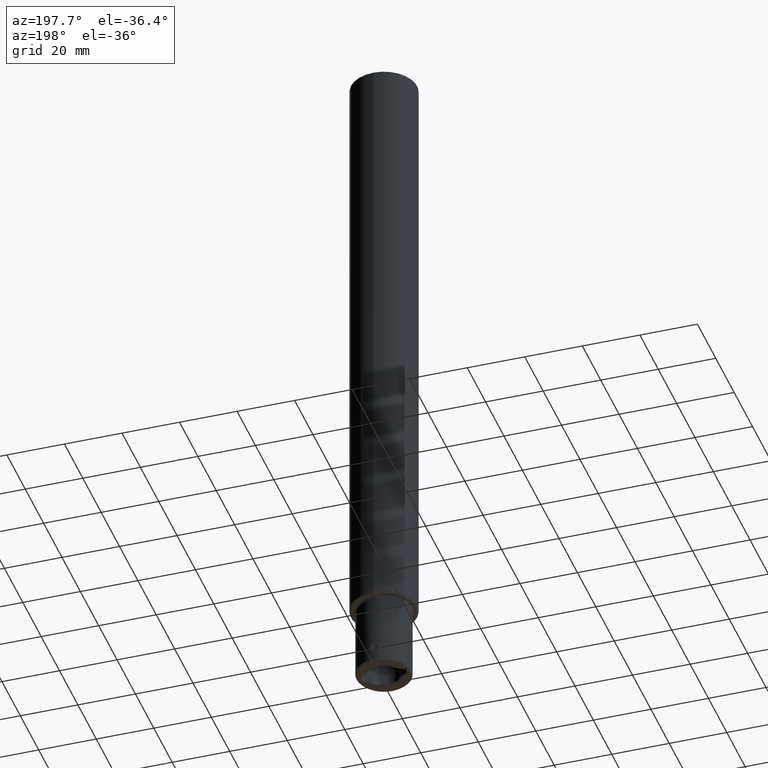
[diagram: clean part render]
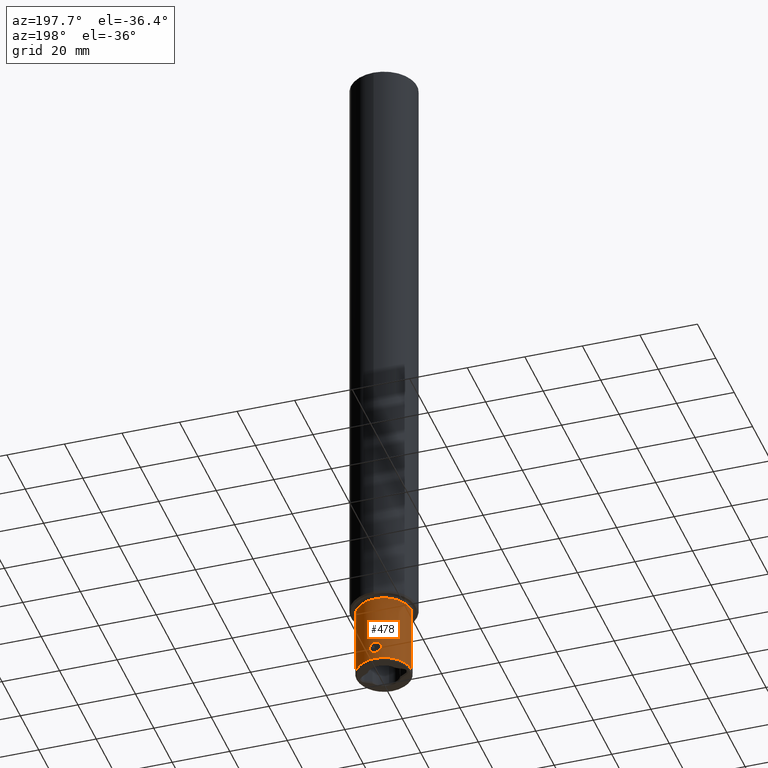
[diagram: same view with one face highlighted and labeled with its STEP entity id]
A machine part, auxiliary view. The second image highlights one B-rep face of the part: STEP entity #478.
In plain terms, the highlighted cylindrical surface (edge-blend (fillet) strip) has radius 9.5 mm, axis along (-0, -0, -1).
Its self-contained STEP definition (entity closure, byte-faithful):
#380=EDGE_CURVE('NONE',#470,#674,#1085,.F.);
#420=EDGE_CURVE('NONE',#752,#576,#1130,.F.);
#434=EDGE_CURVE('NONE',#444,#882,#1144,.F.);
#444=VERTEX_POINT('NONE',#1154);
#470=VERTEX_POINT('NONE',#1184);
#478=ADVANCED_FACE('NONE',(#1194,#1195),#1196,.T.);
#534=EDGE_CURVE('NONE',#674,#566,#1255,.F.);
#566=VERTEX_POINT('NONE',#1293);
#576=VERTEX_POINT('NONE',#1304);
#578=EDGE_CURVE('NONE',#566,#684,#1306,.T.);
#674=VERTEX_POINT('NONE',#1407);
#684=VERTEX_POINT('NONE',#1420);
#706=EDGE_CURVE('NONE',#882,#444,#1445,.F.);
#752=VERTEX_POINT('NONE',#1499);
#818=EDGE_CURVE('NONE',#470,#752,#1570,.T.);
#882=VERTEX_POINT('NONE',#1641);
#902=EDGE_CURVE('NONE',#576,#684,#1662,.F.);
#1085=CIRCLE('',#1858,9.49999999999999);
#1130=CIRCLE('',#1910,9.49999999999999);
#1144=B_SPLINE_CURVE_WITH_KNOTS('',3,(#1932,#1933,#1934,#1935,#1936,#1937,#1938,#1939,#1940,#1941,#1942,#1943,#1944,#1945,#1946,#1947,#1948,#1949,#1950,#1951,#1952,#1953,#1954,#1955,#1956,#1957,#1958,#1959,#1960,#1961,#1962,#1963,#1964,#1965,#1966,#1967,#1968,#1969,#1970,#1971,#1972,#1973,#1974,#1975,#1976,#1977,#1978,#1979,#1980,#1981),.UNSPECIFIED.,.F.,.F.,(4,2,2,2,2,2,2,2,2,2,2,2,2,2,2,2,2,2,2,2,2,2,2,2,4),(1.58780949031996,1.9847283842422,2.38164727816444,2.77856617208668,3.17548506600891,3.57240395993115,3.96932285385339,4.36624174777563,4.76316064169787,5.16011301427786,5.55706538685785,5.95401775943784,6.35097013201783,6.74792250459782,7.14487487717781,7.5418272497578,7.93877962233779,8.33569851626003,8.73261741018227,9.12953630410451,9.52645519802675,9.92337409194899,10.3202929858712,10.7172118797935,11.1141307737157),.UNSPECIFIED.);
#1154=CARTESIAN_POINT('',(-2.4042555634705E-014,9.49999999999999,7.15));
#1184=CARTESIAN_POINT('',(-9.5,-2.37853876557901E-014,25.0));
#1194=FACE_OUTER_BOUND('',#2043,.T.);
#1195=FACE_BOUND('',#2044,.T.);
#1196=CYLINDRICAL_SURFACE('',#2045,9.49999999999999);
#1255=CIRCLE('',#2170,9.49999999999999);
#1293=CARTESIAN_POINT('',(9.5,2.49487636919214E-014,25.0));
#1304=CARTESIAN_POINT('',(-2.37853876557901E-014,9.49999999999999,0.499999999999988));
#1306=LINE('',#2233,#2234);
#1407=CARTESIAN_POINT('',(-1.16341445918998E-015,9.49999999999999,25.0));
#1420=CARTESIAN_POINT('',(9.49999999999999,2.49487636919214E-014,0.499999999999988));
#1445=B_SPLINE_CURVE_WITH_KNOTS('',3,(#2424,#2425,#2426,#2427,#2428,#2429,#2430,#2431,#2432,#2433,#2434,#2435,#2436,#2437,#2438,#2439,#2440,#2441,#2442,#2443,#2444,#2445,#2446,#2447,#2448,#2449,#2450,#2451,#2452,#2453,#2454,#2455,#2456,#2457,#2458,#2459,#2460,#2461,#2462,#2463,#2464,#2465,#2466,#2467,#2468,#2469,#2470,#2471,#2472,#2473,#2474),.UNSPECIFIED.,.F.,.F.,(4,2,2,2,2,2,2,2,2,2,2,2,3,2,2,2,2,2,2,2,2,2,2,2,4),(-4.76316064169787,-4.36624174777563,-3.9693228538534,-3.57240395993116,-3.17548506600892,-2.77856617208668,-2.38164727816444,-1.9847283842422,-1.58780949031996,-1.19085711773997,-0.793904745159979,-0.396952372579991,0.0,0.39695237257999,0.79390474515998,1.19085711773997,1.58780949031996,1.9847283842422,2.38164727816444,2.77856617208668,3.17548506600891,3.57240395993115,3.96932285385339,4.36624174777563,4.76316064169787),.UNSPECIFIED.);
#1499=CARTESIAN_POINT('',(-9.49999999999999,-2.37853876557901E-014,0.499999999999988));
#1570=LINE('',#2770,#2771);
#1641=CARTESIAN_POINT('',(-2.3773803117264E-014,9.49999999999999,2.95));
#1662=CIRCLE('',#2946,9.49999999999999);
#1858=AXIS2_PLACEMENT_3D('',#3296,#3297,#3298);
#1910=AXIS2_PLACEMENT_3D('',#3350,#3351,#3352);
#1932=CARTESIAN_POINT('',(1.48492424049173,9.38322972115678,3.56507575950825));
#1933=CARTESIAN_POINT('',(1.3919498618702,9.39794319537221,3.47210138088672));
#1934=CARTESIAN_POINT('',(1.28688934092165,9.41314073160092,3.38478282288182));
#1935=CARTESIAN_POINT('',(1.05797891274081,9.44160914403958,3.23073832469766));
#1936=CARTESIAN_POINT('',(0.93413266907003,9.45485229980435,3.1640018189925));
#1937=CARTESIAN_POINT('',(0.675559563917746,9.4768378232422,3.05670817959504));
#1938=CARTESIAN_POINT('',(0.540618581817216,9.48557906319787,3.01606577067227));
#1939=CARTESIAN_POINT('',(0.268993374094935,9.49716384926985,2.96270522806561));
#1940=CARTESIAN_POINT('',(0.132306297974056,9.49999999999999,2.95));
#1941=CARTESIAN_POINT('',(-0.132306297974103,9.49999999999999,2.95));
#1942=CARTESIAN_POINT('',(-0.268993374094982,9.49716384926985,2.96270522806561));
#1943=CARTESIAN_POINT('',(-0.540618581817263,9.48557906319787,3.01606577067227));
#1944=CARTESIAN_POINT('',(-0.675559563917793,9.47683782324219,3.05670817959504));
#1945=CARTESIAN_POINT('',(-0.934132669070077,9.45485229980435,3.1640018189925));
#1946=CARTESIAN_POINT('',(-1.05797891274085,9.44160914403957,3.23073832469766));
#1947=CARTESIAN_POINT('',(-1.2868893409217,9.41314073160092,3.38478282288182));
#1948=CARTESIAN_POINT('',(-1.39194986187025,9.39794319537221,3.47210138088672));
#1949=CARTESIAN_POINT('',(-1.57790646116226,9.36851500591357,3.65805798017874));
#1950=CARTESIAN_POINT('',(-1.66522589677438,9.35324335897207,3.76312214858395));
#1951=CARTESIAN_POINT('',(-1.81926688429356,9.32450570398208,3.99203029588376));
#1952=CARTESIAN_POINT('',(-1.88599937129837,9.31106917764844,4.11587061624349));
#1953=CARTESIAN_POINT('',(-1.99328855236912,9.28869225107124,4.37443214350036));
#1954=CARTESIAN_POINT('',(-2.03393053016166,9.27975611893227,4.50936764674465));
#1955=CARTESIAN_POINT('',(-2.08729276693531,9.26789921901987,4.78099136154018));
#1956=CARTESIAN_POINT('',(-2.10000000000002,9.26498785752036,4.91768254247334));
#1957=CARTESIAN_POINT('',(-2.10000000000002,9.26498785752036,5.18231745752666));
#1958=CARTESIAN_POINT('',(-2.08729276693531,9.26789921901987,5.31900863845981));
#1959=CARTESIAN_POINT('',(-2.03393053016166,9.27975611893227,5.59063235325535));
#1960=CARTESIAN_POINT('',(-1.99328855236912,9.28869225107124,5.72556785649964));
#1961=CARTESIAN_POINT('',(-1.88599937129837,9.31106917764844,5.98412938375651));
#1962=CARTESIAN_POINT('',(-1.81926688429356,9.32450570398208,6.10796970411624));
#1963=CARTESIAN_POINT('',(-1.66522589677438,9.35324335897207,6.33687785141605));
#1964=CARTESIAN_POINT('',(-1.57790646116226,9.36851500591357,6.44194201982126));
#1965=CARTESIAN_POINT('',(-1.39194986187025,9.39794319537221,6.62789861911328));
#1966=CARTESIAN_POINT('',(-1.2868893409217,9.41314073160092,6.71521717711817));
#1967=CARTESIAN_POINT('',(-1.05797891274085,9.44160914403957,6.86926167530234));
#1968=CARTESIAN_POINT('',(-0.934132669070076,9.45485229980435,6.9359981810075));
#1969=CARTESIAN_POINT('',(-0.675559563917793,9.47683782324219,7.04329182040497));
#1970=CARTESIAN_POINT('',(-0.540618581817263,9.48557906319787,7.08393422932773));
#1971=CARTESIAN_POINT('',(-0.268993374094982,9.49716384926985,7.13729477193439));
#1972=CARTESIAN_POINT('',(-0.132306297974104,9.49999999999999,7.15));
#1973=CARTESIAN_POINT('',(0.132306297974055,9.49999999999999,7.15));
#1974=CARTESIAN_POINT('',(0.268993374094934,9.49716384926985,7.13729477193439));
#1975=CARTESIAN_POINT('',(0.540618581817216,9.48557906319787,7.08393422932773));
#1976=CARTESIAN_POINT('',(0.675559563917746,9.4768378232422,7.04329182040496));
#1977=CARTESIAN_POINT('',(0.93413266907003,9.45485229980435,6.93599818100749));
#1978=CARTESIAN_POINT('',(1.0579789127408,9.44160914403958,6.86926167530234));
#1979=CARTESIAN_POINT('',(1.28688934092165,9.41314073160092,6.71521717711817));
#1980=CARTESIAN_POINT('',(1.3919498618702,9.39794319537221,6.62789861911327));
#1981=CARTESIAN_POINT('',(1.48492424049173,9.38322972115678,6.53492424049175));
#2043=EDGE_LOOP('',(#3406,#3407,#3408,#3409,#3410,#3411));
#2044=EDGE_LOOP('',(#3412,#3413));
#2045=AXIS2_PLACEMENT_3D('',#3414,#3415,#3416);
#2170=AXIS2_PLACEMENT_3D('',#3458,#3459,#3460);
#2233=CARTESIAN_POINT('',(9.49999999999999,2.49487636919214E-014,-3.76014803892497));
#2234=VECTOR('',#3538,1000.0);
#2424=CARTESIAN_POINT('',(-1.48492424049177,9.38322972115677,6.53492424049175));
#2425=CARTESIAN_POINT('',(-1.39194986187025,9.39794319537221,6.62789861911328));
#2426=CARTESIAN_POINT('',(-1.2868893409217,9.41314073160092,6.71521717711817));
#2427=CARTESIAN_POINT('',(-1.05797891274085,9.44160914403957,6.86926167530234));
#2428=CARTESIAN_POINT('',(-0.934132669070076,9.45485229980435,6.9359981810075));
#2429=CARTESIAN_POINT('',(-0.675559563917793,9.47683782324219,7.04329182040497));
#2430=CARTESIAN_POINT('',(-0.540618581817263,9.48557906319787,7.08393422932773));
#2431=CARTESIAN_POINT('',(-0.268993374094982,9.49716384926985,7.13729477193439));
#2432=CARTESIAN_POINT('',(-0.132306297974104,9.49999999999999,7.15));
#2433=CARTESIAN_POINT('',(0.132306297974055,9.49999999999999,7.15));
#2434=CARTESIAN_POINT('',(0.268993374094934,9.49716384926985,7.13729477193439));
#2435=CARTESIAN_POINT('',(0.540618581817216,9.48557906319787,7.08393422932773));
#2436=CARTESIAN_POINT('',(0.675559563917746,9.4768378232422,7.04329182040496));
#2437=CARTESIAN_POINT('',(0.93413266907003,9.45485229980435,6.93599818100749));
#2438=CARTESIAN_POINT('',(1.0579789127408,9.44160914403958,6.86926167530234));
#2439=CARTESIAN_POINT('',(1.28688934092165,9.41314073160092,6.71521717711817));
#2440=CARTESIAN_POINT('',(1.3919498618702,9.39794319537221,6.62789861911327));
#2441=CARTESIAN_POINT('',(1.57790646116222,9.36851500591358,6.44194201982126));
#2442=CARTESIAN_POINT('',(1.66522589677433,9.35324335897208,6.33687785141605));
#2443=CARTESIAN_POINT('',(1.81926688429352,9.32450570398209,6.10796970411624));
#2444=CARTESIAN_POINT('',(1.88599937129832,9.31106917764845,5.98412938375651));
#2445=CARTESIAN_POINT('',(1.99328855236907,9.28869225107125,5.72556785649964));
#2446=CARTESIAN_POINT('',(2.03393053016161,9.27975611893228,5.59063235325535));
#2447=CARTESIAN_POINT('',(2.08729276693527,9.26789921901988,5.31900863845981));
#2448=CARTESIAN_POINT('',(2.09999999999998,9.26498785752037,5.18231745752666));
#2449=CARTESIAN_POINT('',(2.09999999999998,9.26498785752037,5.05));
#2450=CARTESIAN_POINT('',(2.09999999999998,9.26498785752037,4.91768254247334));
#2451=CARTESIAN_POINT('',(2.08729276693527,9.26789921901988,4.78099136154018));
#2452=CARTESIAN_POINT('',(2.03393053016161,9.27975611893228,4.50936764674464));
#2453=CARTESIAN_POINT('',(1.99328855236907,9.28869225107125,4.37443214350036));
#2454=CARTESIAN_POINT('',(1.88599937129832,9.31106917764845,4.11587061624349));
#2455=CARTESIAN_POINT('',(1.81926688429352,9.32450570398209,3.99203029588376));
#2456=CARTESIAN_POINT('',(1.66522589677433,9.35324335897208,3.76312214858395));
#2457=CARTESIAN_POINT('',(1.57790646116222,9.36851500591358,3.65805798017874));
#2458=CARTESIAN_POINT('',(1.3919498618702,9.39794319537221,3.47210138088672));
#2459=CARTESIAN_POINT('',(1.28688934092165,9.41314073160092,3.38478282288182));
#2460=CARTESIAN_POINT('',(1.05797891274081,9.44160914403958,3.23073832469766));
#2461=CARTESIAN_POINT('',(0.93413266907003,9.45485229980435,3.1640018189925));
#2462=CARTESIAN_POINT('',(0.675559563917746,9.4768378232422,3.05670817959504));
#2463=CARTESIAN_POINT('',(0.540618581817216,9.48557906319787,3.01606577067227));
#2464=CARTESIAN_POINT('',(0.268993374094935,9.49716384926985,2.96270522806561));
#2465=CARTESIAN_POINT('',(0.132306297974056,9.49999999999999,2.95));
#2466=CARTESIAN_POINT('',(-0.132306297974103,9.49999999999999,2.95));
#2467=CARTESIAN_POINT('',(-0.268993374094982,9.49716384926985,2.96270522806561));
#2468=CARTESIAN_POINT('',(-0.540618581817263,9.48557906319787,3.01606577067227));
#2469=CARTESIAN_POINT('',(-0.675559563917793,9.47683782324219,3.05670817959504));
#2470=CARTESIAN_POINT('',(-0.934132669070077,9.45485229980435,3.1640018189925));
#2471=CARTESIAN_POINT('',(-1.05797891274085,9.44160914403957,3.23073832469766));
#2472=CARTESIAN_POINT('',(-1.2868893409217,9.41314073160092,3.38478282288182));
#2473=CARTESIAN_POINT('',(-1.39194986187025,9.39794319537221,3.47210138088672));
#2474=CARTESIAN_POINT('',(-1.48492424049177,9.38322972115677,3.56507575950825));
#2770=CARTESIAN_POINT('',(-9.49999999999999,-2.37853876557901E-014,-3.76014803892496));
#2771=VECTOR('',#3875,1000.0);
#2946=AXIS2_PLACEMENT_3D('',#3972,#3973,#3974);
#3296=CARTESIAN_POINT('',(6.3732706567823E-031,-5.20417042793042E-015,25.0));
#3297=DIRECTION('',(1.3695185336659E-016,3.42889781316134E-031,1.0));
#3298=DIRECTION('',(-1.0,-2.50372501639896E-015,1.3695185336659E-016));
#3350=CARTESIAN_POINT('',(5.83435169546816E-016,1.46076122944133E-030,0.499999999999986));
#3351=DIRECTION('',(1.3695185336659E-016,3.42889781316134E-031,1.0));
#3352=DIRECTION('',(-1.0,-2.50372501639896E-015,1.3695185336659E-016));
#3406=ORIENTED_EDGE('',*,*,#380,.T.);
#3407=ORIENTED_EDGE('',*,*,#534,.T.);
#3408=ORIENTED_EDGE('',*,*,#578,.T.);
#3409=ORIENTED_EDGE('',*,*,#902,.F.);
#3410=ORIENTED_EDGE('',*,*,#420,.F.);
#3411=ORIENTED_EDGE('',*,*,#818,.F.);
#3412=ORIENTED_EDGE('',*,*,#706,.T.);
#3413=ORIENTED_EDGE('',*,*,#434,.T.);
#3414=CARTESIAN_POINT('',(0.0,0.0,-3.76014803892497));
#3415=DIRECTION('',(-1.3695185336659E-016,-3.42889781316134E-031,-1.0));
#3416=DIRECTION('',(-1.0,-2.50372501639896E-015,1.3695185336659E-016));
#3458=CARTESIAN_POINT('',(6.3732706567823E-031,-5.20417042793042E-015,25.0));
#3459=DIRECTION('',(1.3695185336659E-016,3.42889781316134E-031,1.0));
#3460=DIRECTION('',(-1.0,-2.50372501639896E-015,1.3695185336659E-016));
#3538=DIRECTION('',(-1.22460635382238E-016,-3.0660775633062E-031,-1.0));
#3875=DIRECTION('',(-1.22460635382238E-016,-3.0660775633062E-031,-1.0));
#3972=CARTESIAN_POINT('',(5.83435169546816E-016,1.46076122944133E-030,0.499999999999986));
#3973=DIRECTION('',(1.3695185336659E-016,3.42889781316134E-031,1.0));
#3974=DIRECTION('',(-1.0,-2.50372501639896E-015,1.3695185336659E-016));